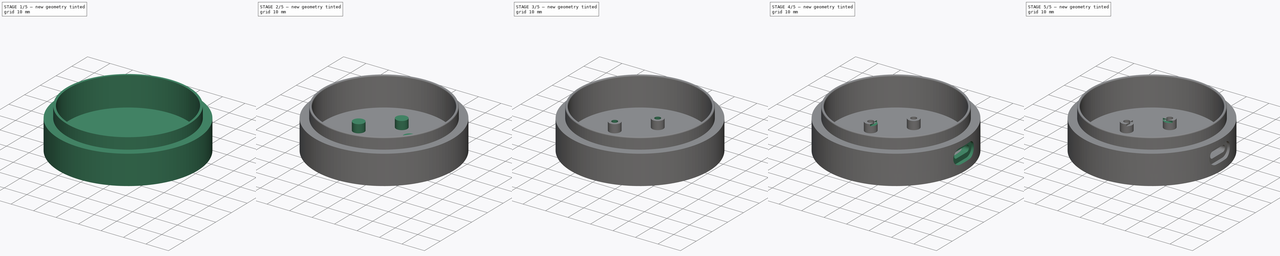
[diagram: build sequence overview — one tinted view per stage of 5, left to right]
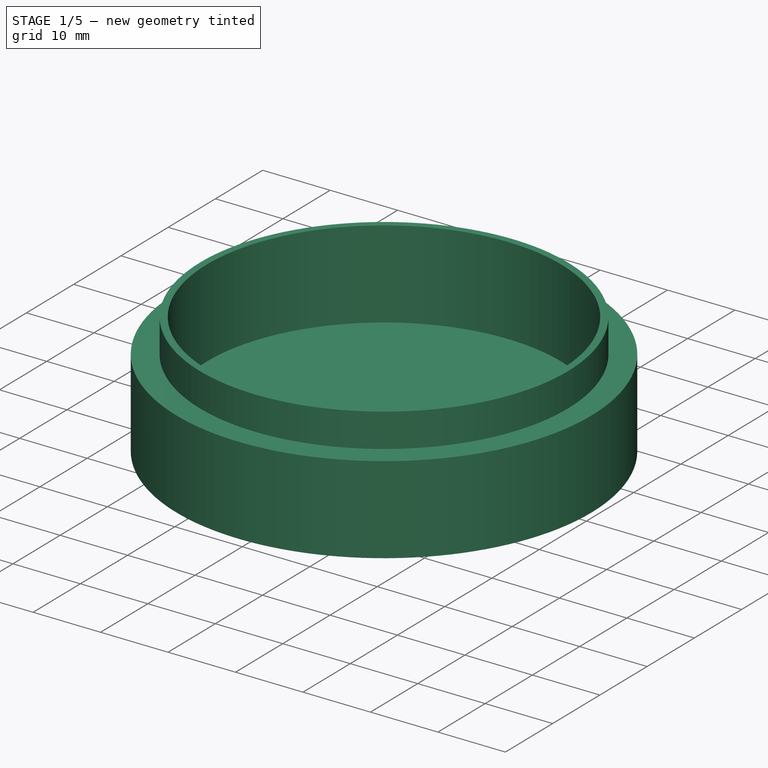
[diagram: stage 1 of 5 — iso view after this stage's code; geometry added in this stage tinted green]
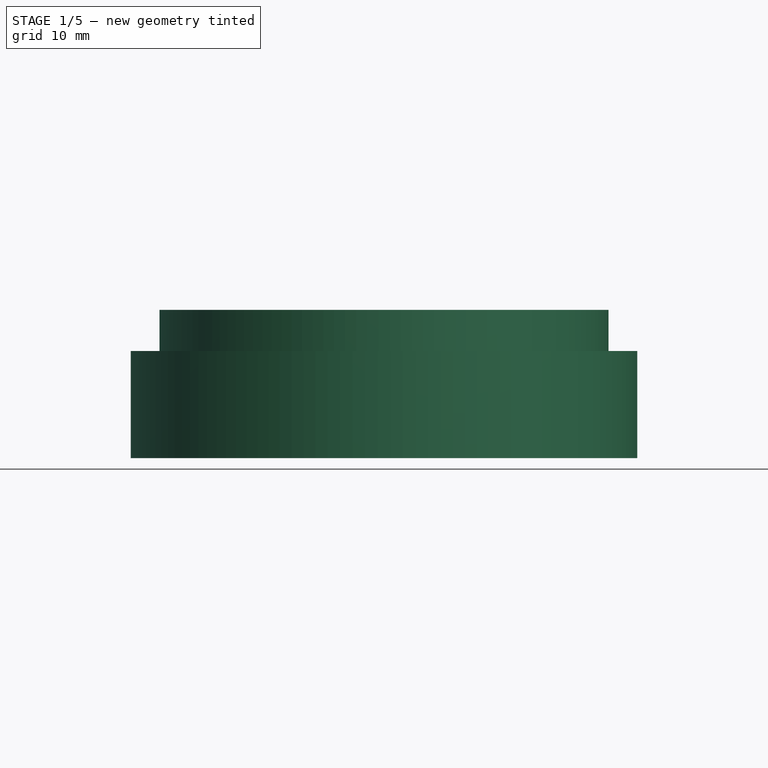
[diagram: stage 1 of 5 — front view after this stage's code; geometry added in this stage tinted green]
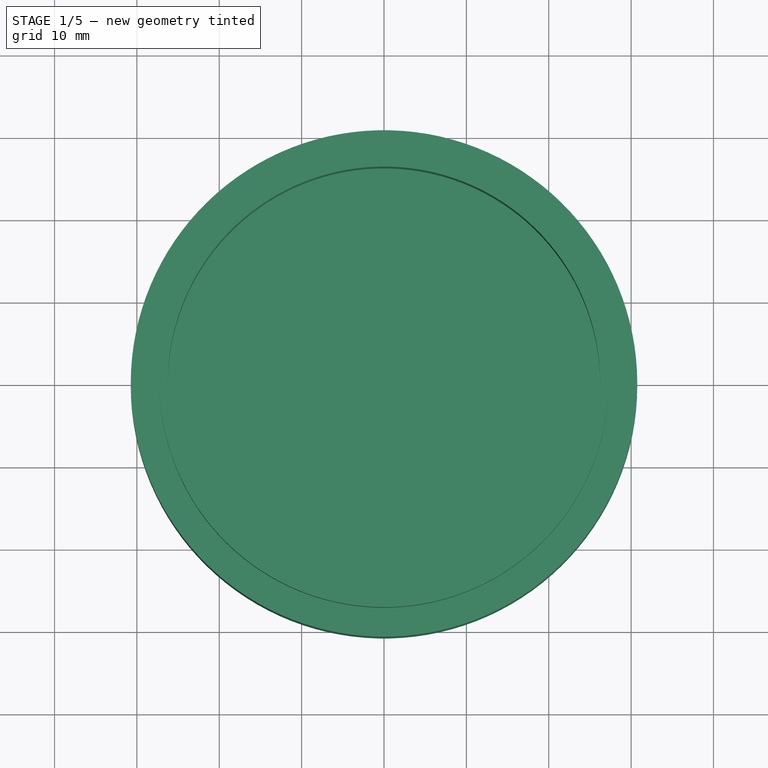
[diagram: stage 1 of 5 — top view after this stage's code; geometry added in this stage tinted green]
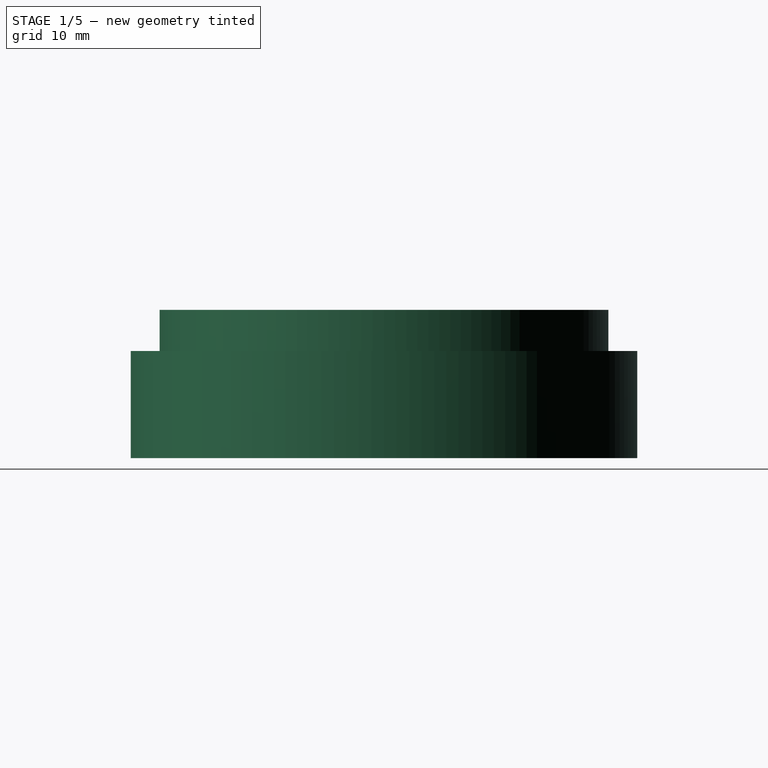
[diagram: stage 1 of 5 — right view after this stage's code; geometry added in this stage tinted green]
FCSTD DOCUMENT  (FreeCAD 0.20R29603 (Git))
Label: shell_bottom
License: All rights reserved
LicenseURL: http://en.wikipedia.org/wiki/All_rights_reserved
objects: Sketcher::SketchObject×11, PartDesign::Pocket×8, PartDesign::PolarPattern×5, PartDesign::Pad×3, PartDesign::Fillet×1, PartDesign::Body×1
note: 41 computed .brp shape members not serialized (recipe doc carries the construction recipe); baked Part::Feature solids carry a one-line shape summary decoded from their .brp

FEATURE [Sketcher::SketchObject] Sketch
  FullyConstrained = true
  MapMode = 5
  Support = -> [XY_Plane]
  sketch-geometry (1):
    g0: Circle CenterX=0 CenterY=0 CenterZ=0 NormalX=0 NormalY=0 NormalZ=1 AngleXU=0 Radius=30.75
  constraints (2):
    c: Coincident(g0,g-1)
    c: Diameter(g0) = 61.5
FEATURE [PartDesign::Pad] Pad
  Direction = (0,0,1)
  Length = 5
  Length2 = 10
  Profile = -> Sketch
  ReferenceAxis = -> Sketch [N_Axis]
  Type = 0
FEATURE [Sketcher::SketchObject] Sketch001
  ExternalGeometry = -> [Pad]
  FullyConstrained = true
  MapMode = 5
  Placement = pos=(0,0,5) rot=(0,0,1;0rad)
  Support = -> [Pad]
  sketch-geometry (4):
    g0: Circle CenterX=0 CenterY=0 CenterZ=0 NormalX=0 NormalY=0 NormalZ=1 AngleXU=0 Radius=26.25
    g1: GeomPoint X=-30.75 Y=0 Z=0
    g2: GeomPoint X=-26.25 Y=0 Z=0
    g3: Circle CenterX=0 CenterY=0 CenterZ=0 NormalX=0 NormalY=0 NormalZ=1 AngleXU=0 Radius=30.75
  constraints (9):
    c: PointOnObject(g1,g-3)
    c: PointOnObject(g2,g0)
    c: PointOnObject(g1,g-1)
    c: PointOnObject(g2,g-1)
    c: Distance(g2,g1) = 4.5
    c: Coincident(g0,g-3)
    c: Coincident(g3,g0)
    c: Equal(g3,g-3)
    c: Diameter(g0) = 52.5
FEATURE [PartDesign::Pad] Pad001  label="圈高"
  BaseFeature = -> Pad
  Direction = (0,0,1)
  Length = 13
  Length2 = 10
  Profile = -> Sketch001
  ReferenceAxis = -> Sketch001 [N_Axis]
  Type = 0
FEATURE [Sketcher::SketchObject] Sketch002
  ExternalGeometry = -> [Pad001]
  FullyConstrained = true
  MapMode = 5
  Placement = pos=(0,0,18) rot=(0,0,1;0rad)
  Support = -> [Pad001]
  sketch-geometry (4):
    g0: Circle CenterX=0 CenterY=0 CenterZ=0 NormalX=0 NormalY=0 NormalZ=1 AngleXU=0 Radius=30.75
    g1: Circle CenterX=0 CenterY=0 CenterZ=0 NormalX=0 NormalY=0 NormalZ=1 AngleXU=0 Radius=27.25
    g2: GeomPoint X=-30.75 Y=0 Z=0
    g3: GeomPoint X=-27.25 Y=0 Z=0
  constraints (8):
    c: Coincident(g0,g-1)
    c: Coincident(g1,g0)
    c: PointOnObject(g2,g0)
    c: PointOnObject(g3,g1)
    c: PointOnObject(g2,g-1)
    c: PointOnObject(g3,g-1)
    c: Distance(g2,g3) = 3.5
    c: Equal(g-3,g0)
FEATURE [PartDesign::Pocket] Pocket
  BaseFeature = -> Pad001
  Direction = (0,0,-1)
  Length = 5
  Length2 = 5
  Profile = -> Sketch002
  ReferenceAxis = -> Sketch002 [N_Axis]
  Type = 0
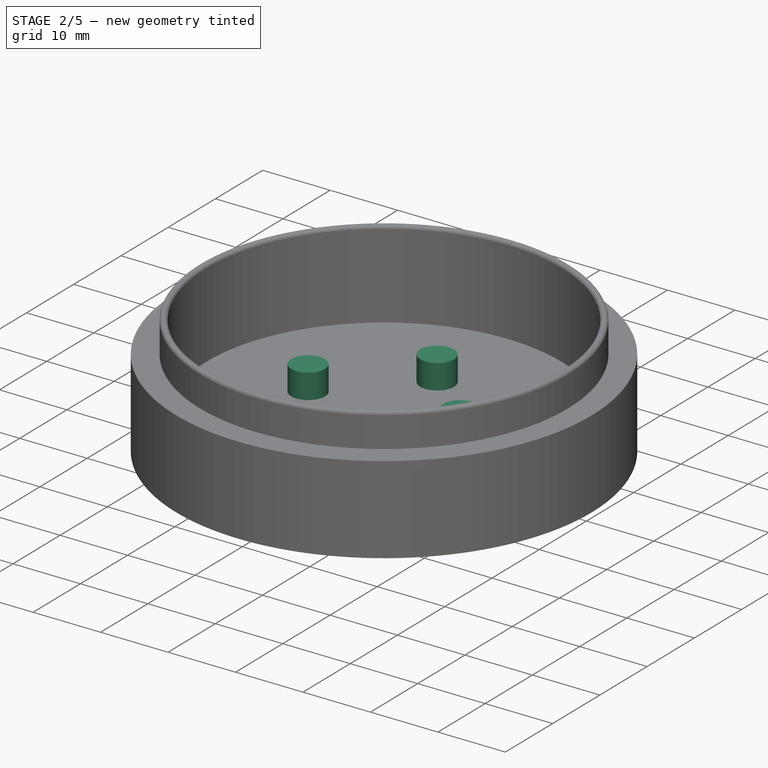
[diagram: stage 2 of 5 — iso view after this stage's code; geometry added in this stage tinted green]
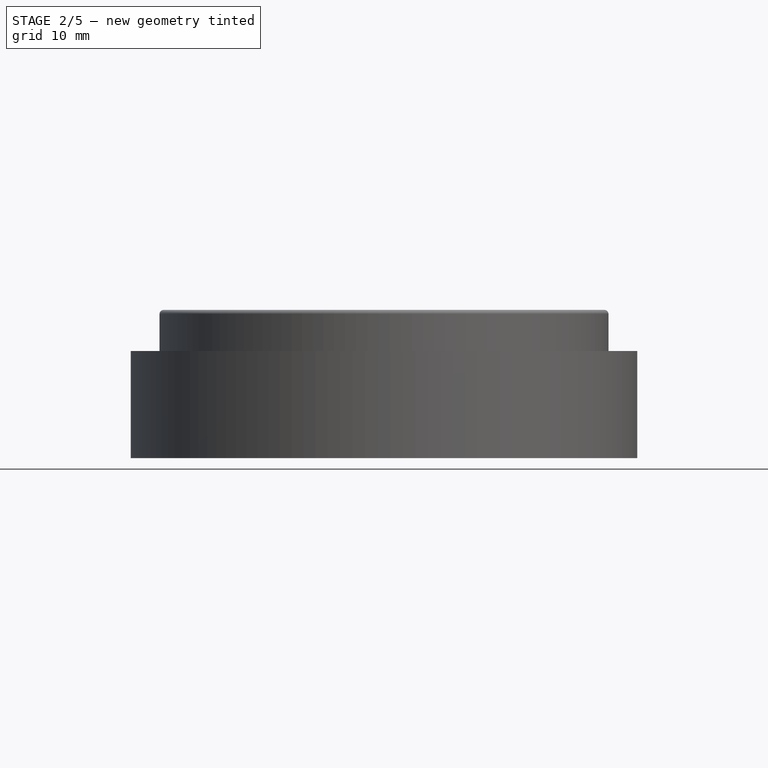
[diagram: stage 2 of 5 — front view after this stage's code; geometry added in this stage tinted green]
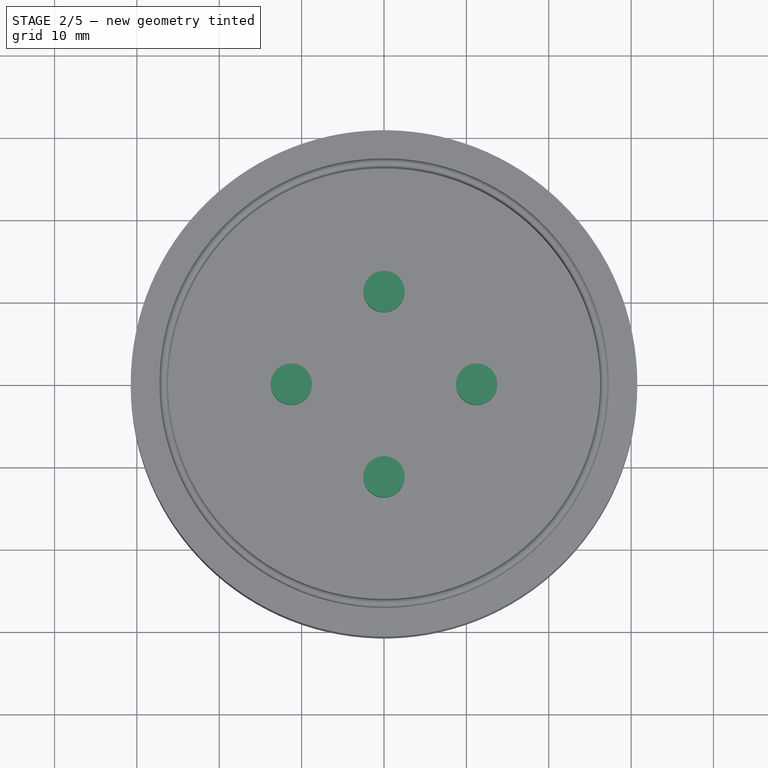
[diagram: stage 2 of 5 — top view after this stage's code; geometry added in this stage tinted green]
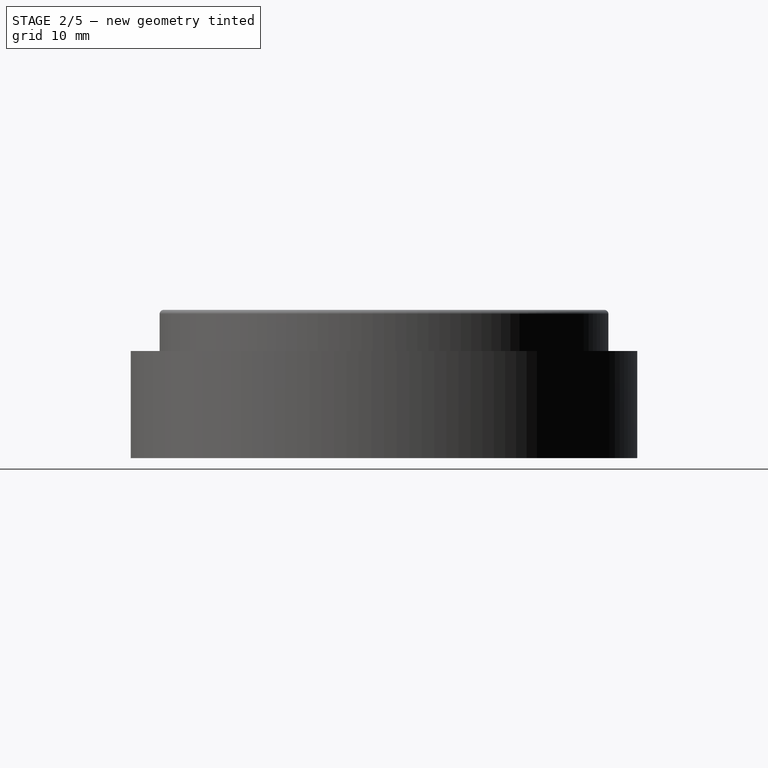
[diagram: stage 2 of 5 — right view after this stage's code; geometry added in this stage tinted green]
FEATURE [PartDesign::Fillet] Fillet
  Base = -> Pocket [Edge8,Edge9]
  BaseFeature = -> Pocket
  Radius = 0.499
  SupportTransform = false
  UseAllEdges = false
FEATURE [Sketcher::SketchObject] Sketch003
  FullyConstrained = true
  MapMode = 5
  Placement = pos=(0,0,5) rot=(0,0,1;0rad)
  Support = -> [Fillet]
  sketch-geometry (1):
    g0: Circle CenterX=0 CenterY=11.25 CenterZ=0 NormalX=0 NormalY=0 NormalZ=1 AngleXU=0 Radius=2.5
  constraints (3):
    c: PointOnObject(g0,g-2)
    c: Distance(g0,g-1) = 11.25
    c: Diameter(g0) = 5
FEATURE [Sketcher::SketchObject] Sketch006
  AttachmentOffset = pos=(0,0,35) rot=(0,0,1;0rad)
  FullyConstrained = true
  MapMode = 5
  Placement = pos=(35,-7.8e-15,7.8e-15) rot=(0.57735,0.57735,0.57735;2.0944rad)
  Support = -> [YZ_Plane]
  sketch-geometry (5):
    g0: LineSegment StartX=-3.125 StartY=7 StartZ=0 EndX=3.125 EndY=7 EndZ=0
    g1: ArcOfCircle CenterX=-3.125 CenterY=7 CenterZ=0 NormalX=0 NormalY=0 NormalZ=1 AngleXU=0 Radius=3.4 StartAngle=1.5708 EndAngle=4.71239
    g2: ArcOfCircle CenterX=3.125 CenterY=7 CenterZ=0 NormalX=0 NormalY=0 NormalZ=1 AngleXU=0 Radius=3.4 StartAngle=4.71239 EndAngle=7.85398
    g3: LineSegment StartX=-3.125 StartY=3.6 StartZ=0 EndX=3.125 EndY=3.6 EndZ=0
    g4: LineSegment StartX=3.125 StartY=10.4 StartZ=0 EndX=-3.125 EndY=10.4 EndZ=0
  constraints (11):
    c: Tangent(g1,g3) = -1.5708
    c: Tangent(g3,g2) = -1.5708
    c: Tangent(g2,g4) = -1.5708
    c: Tangent(g4,g1) = -1.5708
    c: Equal(g1,g2)
    c: Distance(g-1,g0) = 7
    c: Radius(g2) = 3.4
    c: DistanceX(g3,g3) = 6.25
    c: Symmetric(g2,g1,g-2)
    c: Coincident(g0,g2)
    c: Coincident(g1,g0)
FEATURE [PartDesign::Pad] Pad002  label="螺丝柱"
  BaseFeature = -> Fillet
  Direction = (0,0,1)
  Length = 3.68
  Length2 = 10
  Profile = -> Sketch003
  ReferenceAxis = -> Sketch003 [N_Axis]
  Type = 0
FEATURE [PartDesign::PolarPattern] PolarPattern
  Angle = 360
  Axis = -> Sketch003 [N_Axis]
  BaseFeature = -> Pad002
  Occurrences = 4
  Originals = -> [Pad002]
FEATURE [Sketcher::SketchObject] Sketch004
  FullyConstrained = true
  MapMode = 5
  Placement = pos=(0,0,0) rot=(1,0,0;3.14159rad)
  Support = -> [PolarPattern]
  sketch-geometry (1):
    g0: Circle CenterX=0 CenterY=11.25 CenterZ=0 NormalX=0 NormalY=0 NormalZ=1 AngleXU=0 Radius=2
  constraints (3):
    c: PointOnObject(g0,g-2)
    c: Diameter(g0) = 4
    c: Distance(g0,g-1) = 11.25
FEATURE [PartDesign::Pocket] Pocket002
  BaseFeature = -> PolarPattern
  Direction = (0,0,1)
  Length = 2
  Length2 = 5
  Profile = -> Sketch004
  ReferenceAxis = -> Sketch004 [N_Axis]
  Type = 0
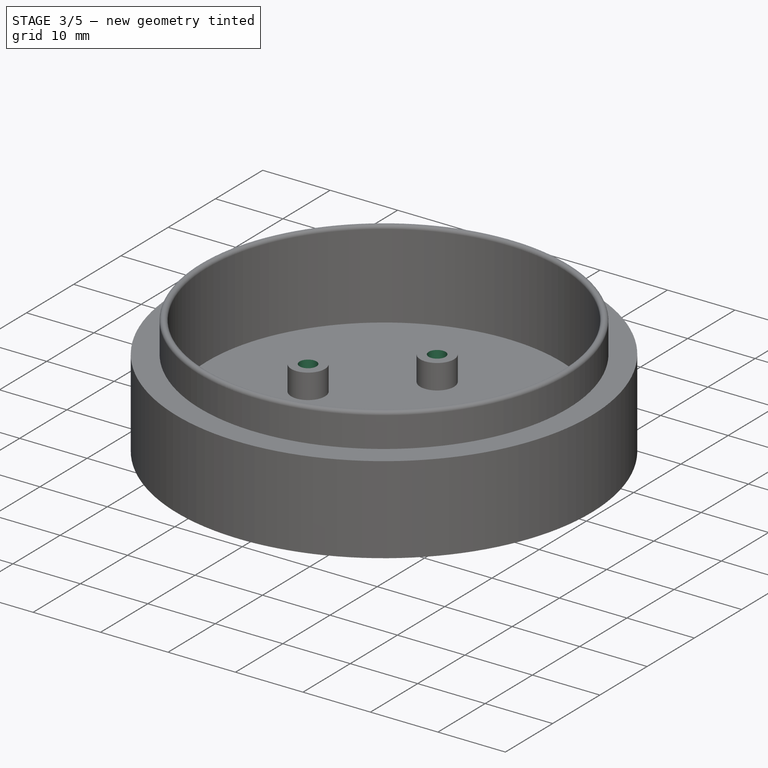
[diagram: stage 3 of 5 — iso view after this stage's code; geometry added in this stage tinted green]
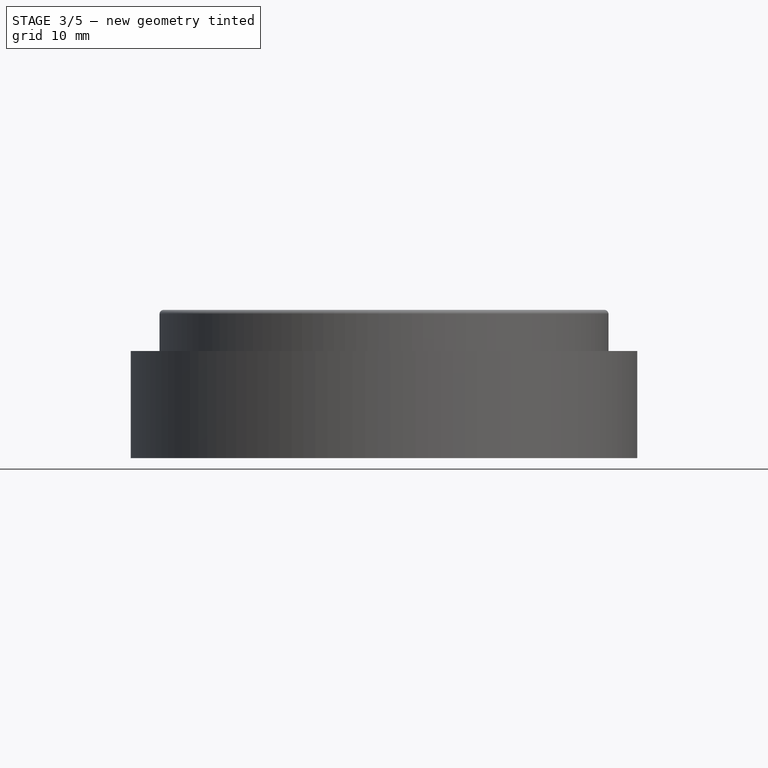
[diagram: stage 3 of 5 — front view after this stage's code; geometry added in this stage tinted green]
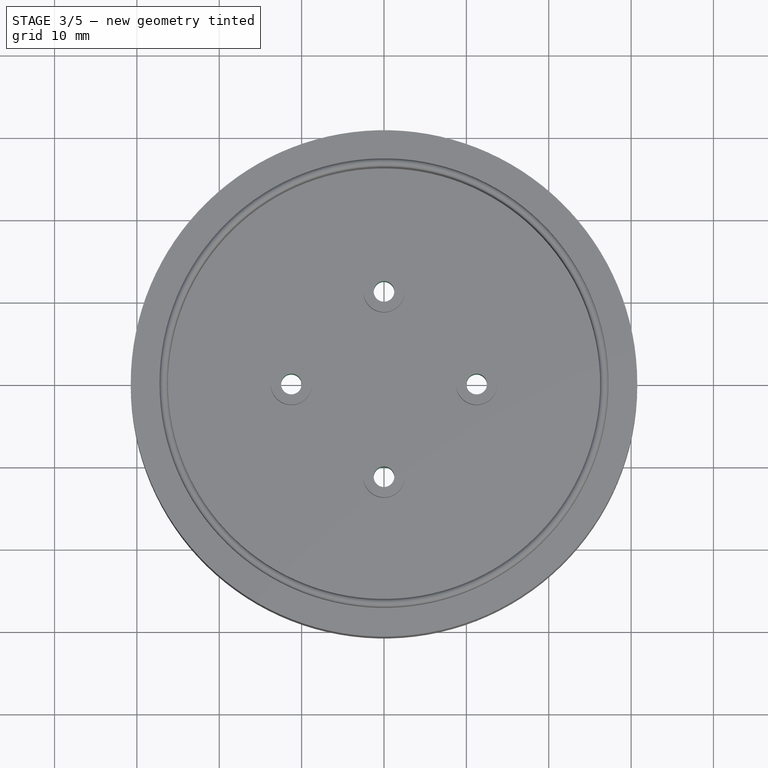
[diagram: stage 3 of 5 — top view after this stage's code; geometry added in this stage tinted green]
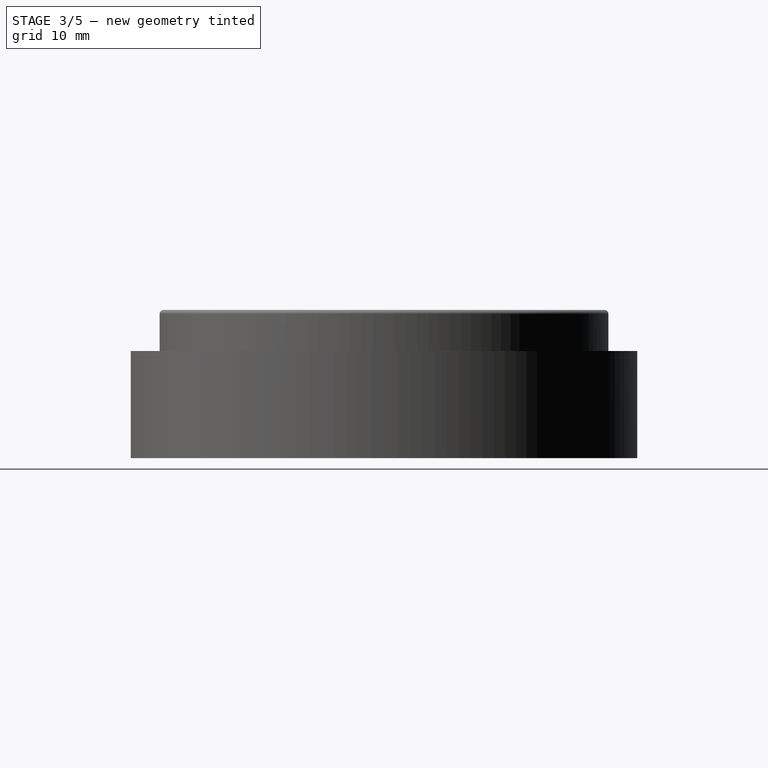
[diagram: stage 3 of 5 — right view after this stage's code; geometry added in this stage tinted green]
FEATURE [PartDesign::PolarPattern] PolarPattern001
  Angle = 360
  Axis = -> Sketch004 [N_Axis]
  BaseFeature = -> Pocket002
  Occurrences = 4
  Originals = -> [Pocket002]
FEATURE [Sketcher::SketchObject] Sketch005
  FullyConstrained = true
  MapMode = 5
  Placement = pos=(0,0,2) rot=(1,0,0;3.14159rad)
  Support = -> [PolarPattern001]
  sketch-geometry (1):
    g0: Circle CenterX=0 CenterY=11.25 CenterZ=0 NormalX=0 NormalY=0 NormalZ=1 AngleXU=0 Radius=1.25
  constraints (3):
    c: PointOnObject(g0,g-2)
    c: Diameter(g0) = 2.5
    c: Distance(g0,g-1) = 11.25
FEATURE [PartDesign::Pocket] Pocket003
  BaseFeature = -> PolarPattern001
  Direction = (0,0,1)
  Length = 0
  Length2 = 5
  Profile = -> Sketch005
  ReferenceAxis = -> Sketch005 [N_Axis]
  Type = 3
  UpToFace = -> PolarPattern001 [Face23]
FEATURE [PartDesign::PolarPattern] PolarPattern002
  Angle = 360
  Axis = -> Sketch005 [N_Axis]
  BaseFeature = -> Pocket003
  Occurrences = 4
  Originals = -> [Pocket003]
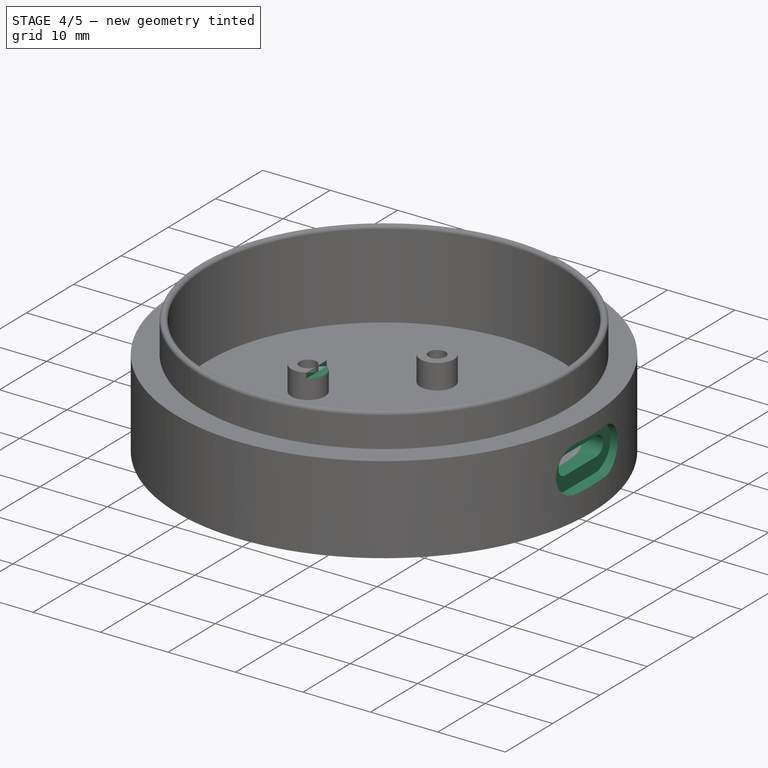
[diagram: stage 4 of 5 — iso view after this stage's code; geometry added in this stage tinted green]
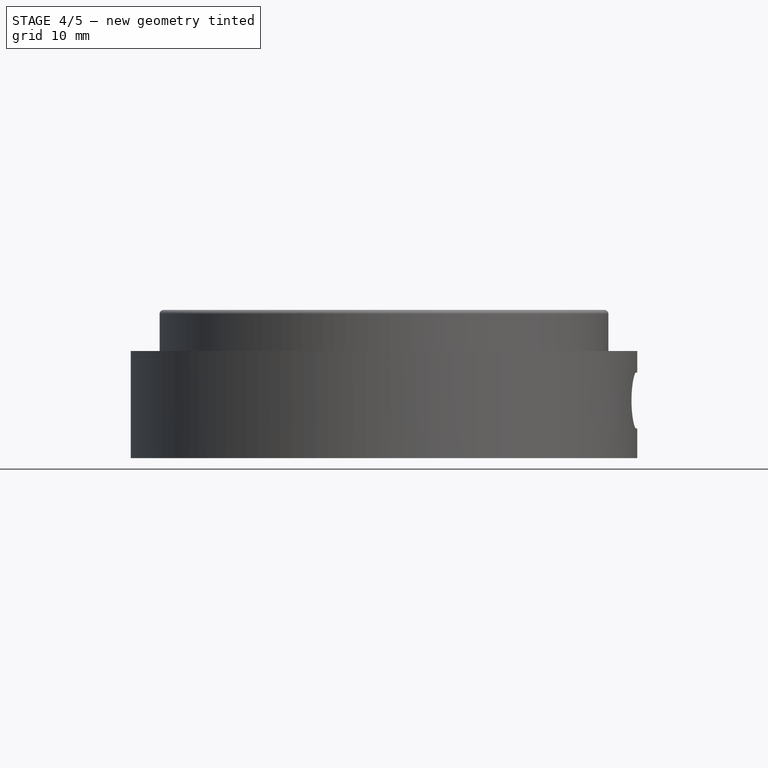
[diagram: stage 4 of 5 — front view after this stage's code; geometry added in this stage tinted green]
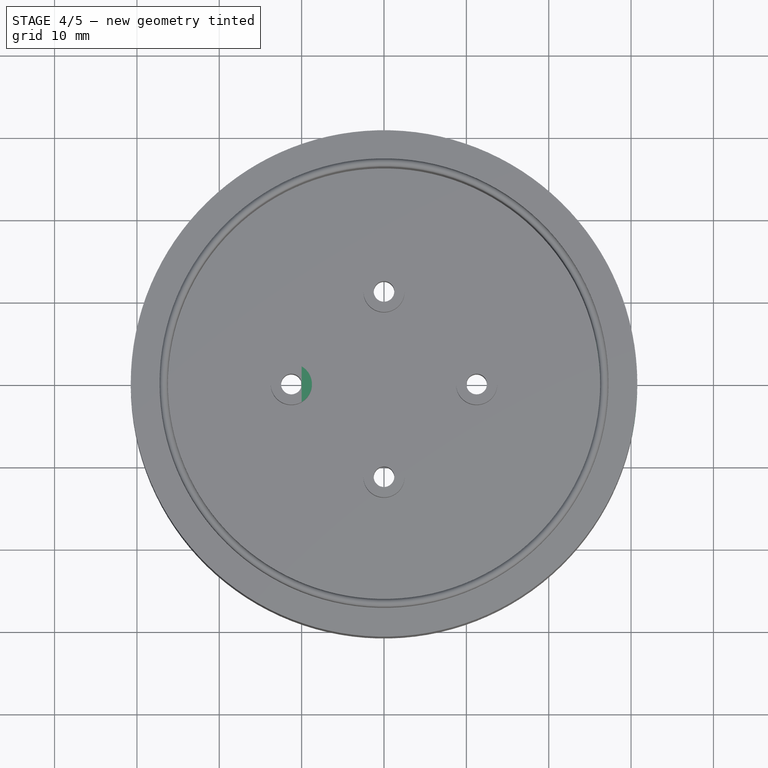
[diagram: stage 4 of 5 — top view after this stage's code; geometry added in this stage tinted green]
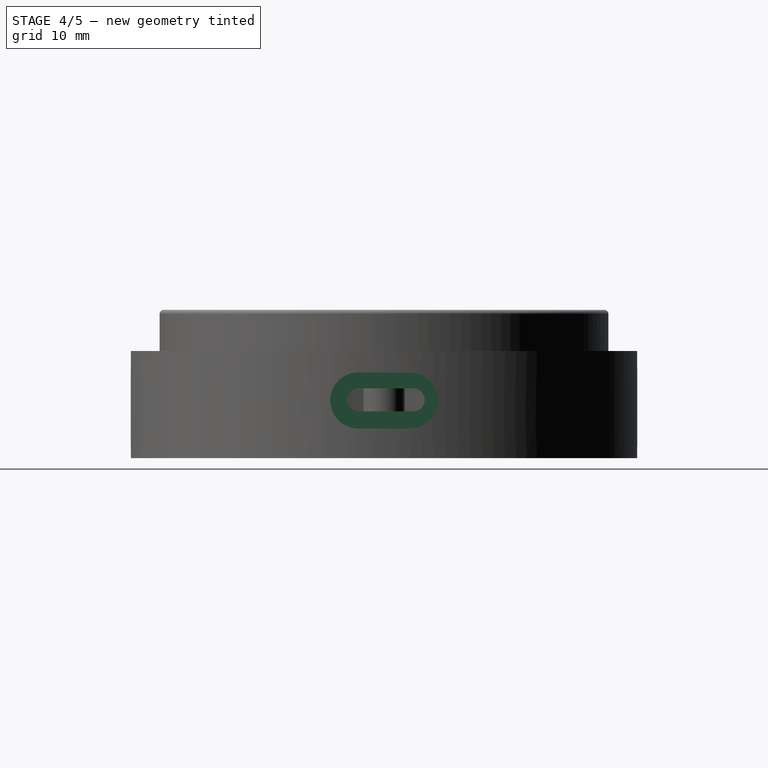
[diagram: stage 4 of 5 — right view after this stage's code; geometry added in this stage tinted green]
FEATURE [PartDesign::Pocket] Pocket004  label="Type-C 外槽"
  BaseFeature = -> PolarPattern002
  Direction = (-1,2e-16,-3e-16)
  Length = 6
  Length2 = 5
  Profile = -> Sketch006
  ReferenceAxis = -> Sketch006 [N_Axis]
  Type = 0
FEATURE [Sketcher::SketchObject] Sketch008
  FullyConstrained = false
  MapMode = 5
  Placement = pos=(29,0,0) rot=(0.57735,0.57735,0.57735;2.0944rad)
  Support = -> [Pocket004]
  sketch-geometry (5):
    g0: ArcOfCircle CenterX=-3.08285 CenterY=7.07544 CenterZ=0 NormalX=0 NormalY=0 NormalZ=1 AngleXU=0 Radius=1.4 StartAngle=1.5708 EndAngle=4.71239
    g1: ArcOfCircle CenterX=3.53684 CenterY=7.07544 CenterZ=0 NormalX=0 NormalY=0 NormalZ=1 AngleXU=0 Radius=1.4 StartAngle=4.71239 EndAngle=7.85398
    g2: LineSegment StartX=-3.08285 StartY=5.67544 StartZ=0 EndX=3.53684 EndY=5.67544 EndZ=0
    g3: LineSegment StartX=3.53684 StartY=8.47544 StartZ=0 EndX=-3.08285 EndY=8.47544 EndZ=0
    g4: LineSegment StartX=-3.08285 StartY=7.07544 StartZ=0 EndX=3.53684 EndY=7.07544 EndZ=0
  constraints (9):
    c: Tangent(g0,g2) = -1.5708
    c: Tangent(g2,g1) = -1.5708
    c: Tangent(g1,g3) = -1.5708
    c: Tangent(g3,g0) = -1.5708
    c: Equal(g0,g1)
    c: Coincident(g4,g0)
    c: Coincident(g4,g1)
    c: Radius(g1) = 1.4
    c: Horizontal(g4)
FEATURE [PartDesign::Pocket] Pocket005  label="Type-C 通孔"
  BaseFeature = -> Pocket004
  Direction = (-1,0,0)
  Length = 0
  Length2 = 5
  Profile = -> Sketch008
  ReferenceAxis = -> Sketch008 [N_Axis]
  Type = 3
  UpToFace = -> Pocket004 [Face11]
FEATURE [Sketcher::SketchObject] Sketch009
  AttachmentOffset = pos=(0,20,25) rot=(0,0,1;0rad)
  ExternalGeometry = -> [Pocket005]
  FullyConstrained = true
  MapMode = 5
  Placement = pos=(25,-1.1e-15,20) rot=(0.57735,0.57735,0.57735;2.0944rad)
  Support = -> [YZ_Plane]
  sketch-geometry (4):
    g0: ArcOfCircle CenterX=3.53684 CenterY=-12.9246 CenterZ=0 NormalX=0 NormalY=0 NormalZ=1 AngleXU=0 Radius=1.9 StartAngle=4.71239 EndAngle=7.85398
    g1: ArcOfCircle CenterX=-3.53684 CenterY=-12.9246 CenterZ=0 NormalX=0 NormalY=0 NormalZ=1 AngleXU=0 Radius=1.9 StartAngle=1.5708 EndAngle=4.71239
    g2: LineSegment StartX=3.53684 StartY=-11.0246 StartZ=0 EndX=-3.53684 EndY=-11.0246 EndZ=0
    g3: LineSegment StartX=-3.53684 StartY=-14.8246 StartZ=0 EndX=3.53684 EndY=-14.8246 EndZ=0
  constraints (8):
    c: Tangent(g0,g2) = -1.5708
    c: Tangent(g2,g1) = -1.5708
    c: Tangent(g1,g3) = -1.5708
    c: Tangent(g3,g0) = -1.5708
    c: Equal(g0,g1)
    c: Coincident(g0,g-3)
    c: Symmetric(g1,g0,g-2)
    c: DistanceY(g-3,g0) = 0.5
FEATURE [PartDesign::Pocket] Pocket006  label="Type-C 内槽"
  BaseFeature = -> Pocket005
  Direction = (-1,2e-16,-3e-16)
  Length = 2
  Length2 = 5
  Profile = -> Sketch009
  ReferenceAxis = -> Sketch009 [N_Axis]
  Reversed = true
  Type = 0
FEATURE [Sketcher::SketchObject] Sketch010
  ExternalGeometry = -> [Pocket006]
  FullyConstrained = true
  MapMode = 5
  Placement = pos=(0,0,8.68) rot=(0,0,1;0rad)
  Support = -> [Pocket006]
  sketch-geometry (4):
    g0: LineSegment StartX=-10 StartY=-2.16506 StartZ=0 EndX=-8.75 EndY=-2.16506 EndZ=0
    g1: LineSegment StartX=-8.75 StartY=-2.16506 StartZ=0 EndX=-8.75 EndY=2.16506 EndZ=0
    g2: LineSegment StartX=-8.75 StartY=2.16506 StartZ=0 EndX=-10 EndY=2.16506 EndZ=0
    g3: LineSegment StartX=-10 StartY=2.16506 StartZ=0 EndX=-10 EndY=-2.16506 EndZ=0
  constraints (11):
    c: Coincident(g0,g1)
    c: Coincident(g1,g2)
    c: Coincident(g2,g3)
    c: Coincident(g3,g0)
    c: Horizontal(g0)
    c: Horizontal(g2)
    c: Vertical(g1)
    c: Symmetric(g2,g0,g-1)
    c: Tangent(g-3,g1)
    c: DistanceX(g0,g0) = 1.25
    c: PointOnObject(g0,g-3)
FEATURE [PartDesign::Pocket] Pocket007
  BaseFeature = -> Pocket006
  Direction = (0,0,-1)
  Length = 0.8
  Length2 = 5
  Profile = -> Sketch010
  ReferenceAxis = -> Sketch010 [N_Axis]
  Type = 0
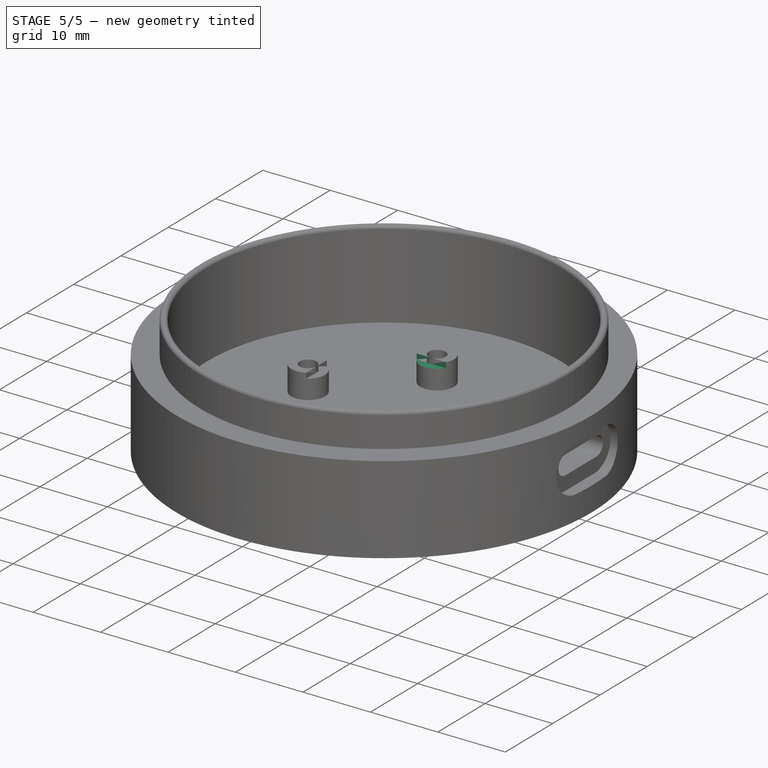
[diagram: stage 5 of 5 — iso view after this stage's code; geometry added in this stage tinted green]
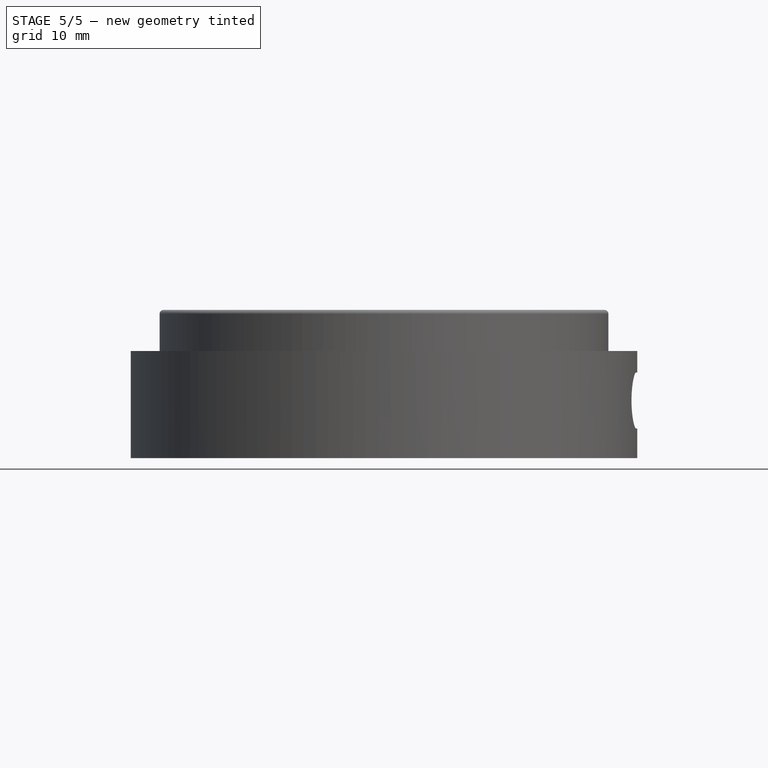
[diagram: stage 5 of 5 — front view after this stage's code; geometry added in this stage tinted green]
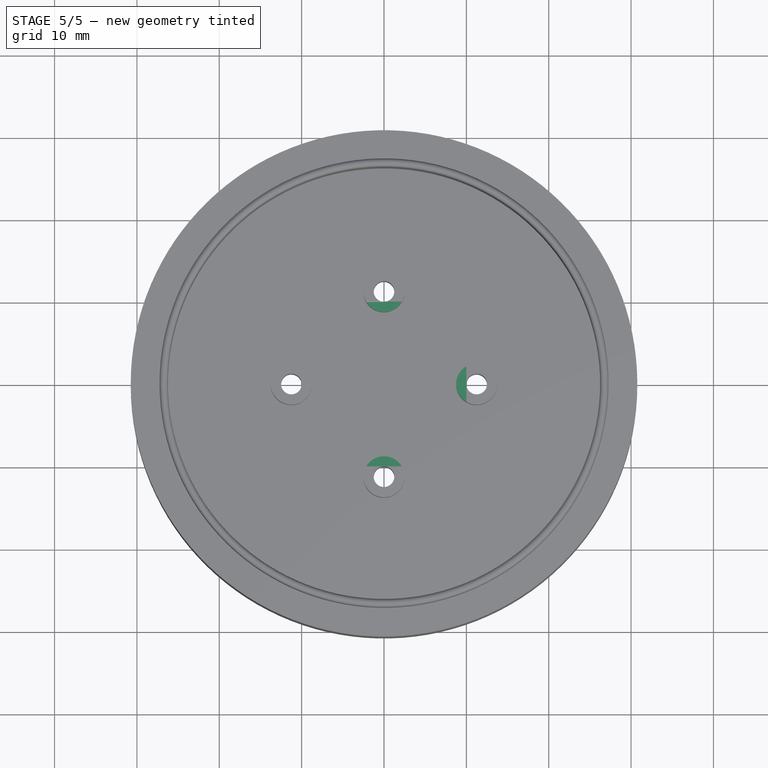
[diagram: stage 5 of 5 — top view after this stage's code; geometry added in this stage tinted green]
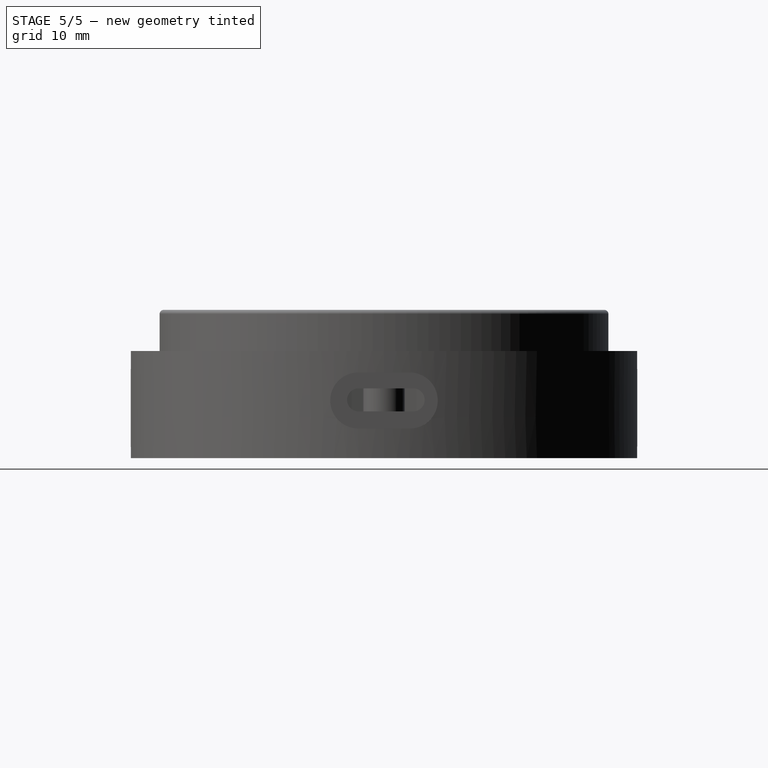
[diagram: stage 5 of 5 — right view after this stage's code; geometry added in this stage tinted green]
FEATURE [PartDesign::PolarPattern] PolarPattern003
  Angle = 360
  Axis = -> Sketch010 [N_Axis]
  BaseFeature = -> Pocket007
  Occurrences = 2
  Originals = -> [Pocket007]
FEATURE [Sketcher::SketchObject] Sketch011
  ExternalGeometry = -> [PolarPattern003]
  FullyConstrained = true
  MapMode = 5
  Placement = pos=(0,0,8.68) rot=(0,0,1;0rad)
  Support = -> [PolarPattern003]
  sketch-geometry (4):
    g0: LineSegment StartX=-2.16506 StartY=10 StartZ=0 EndX=2.16506 EndY=10 EndZ=0
    g1: LineSegment StartX=2.16506 StartY=10 StartZ=0 EndX=2.16506 EndY=8.75 EndZ=0
    g2: LineSegment StartX=2.16506 StartY=8.75 StartZ=0 EndX=-2.16506 EndY=8.75 EndZ=0
    g3: LineSegment StartX=-2.16506 StartY=8.75 StartZ=0 EndX=-2.16506 EndY=10 EndZ=0
  constraints (11):
    c: Coincident(g0,g1)
    c: Coincident(g1,g2)
    c: Coincident(g2,g3)
    c: Coincident(g3,g0)
    c: Horizontal(g0)
    c: Vertical(g1)
    c: Vertical(g3)
    c: Symmetric(g2,g1,g-2)
    c: Tangent(g2,g-3)
    c: PointOnObject(g0,g-3)
    c: DistanceY(g1,g1) = 1.25
FEATURE [PartDesign::Pocket] Pocket008
  BaseFeature = -> PolarPattern003
  Direction = (0,0,-1)
  Length = 0.8
  Length2 = 5
  Profile = -> Sketch011
  ReferenceAxis = -> Sketch011 [N_Axis]
  Type = 0
FEATURE [PartDesign::PolarPattern] PolarPattern004
  Angle = 360
  Axis = -> Sketch011 [N_Axis]
  BaseFeature = -> Pocket008
  Occurrences = 2
  Originals = -> [Pocket008]
FEATURE [PartDesign::Body] Body
  Group = -> [Sketch,Pad,Sketch001,Pad001,Sketch002,Pocket,Fillet,Pad002,PolarPattern,Sketch003,Sketch004,Pocket002,PolarPattern001,Sketch005,Pocket003,PolarPattern002,Sketch006,Pocket004,Sketch008,Pocket005,Sketch009,Pocket006,Sketch010,Pocket007,PolarPattern003,Sketch011,Pocket008,PolarPattern004]
  Origin = -> Origin
  Tip = -> PolarPattern004
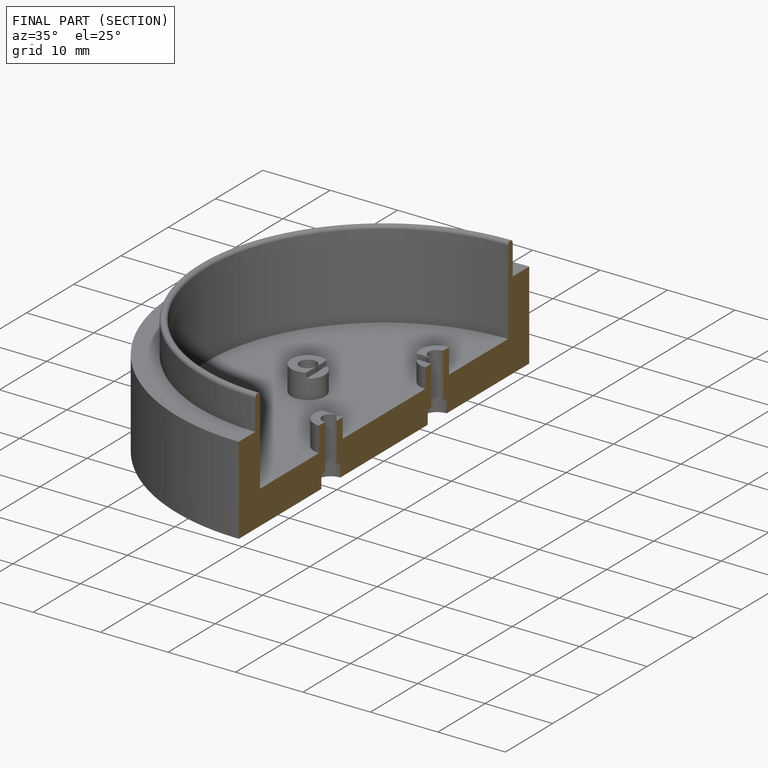
[diagram: finished part — half-section view (interior)]
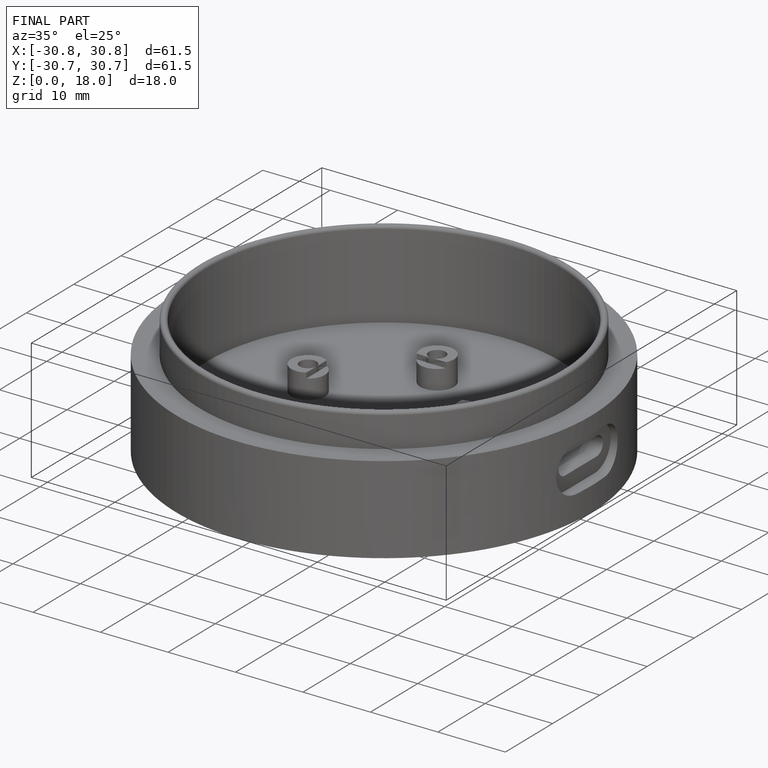
[diagram: finished part — iso view with bounding-box wireframe]
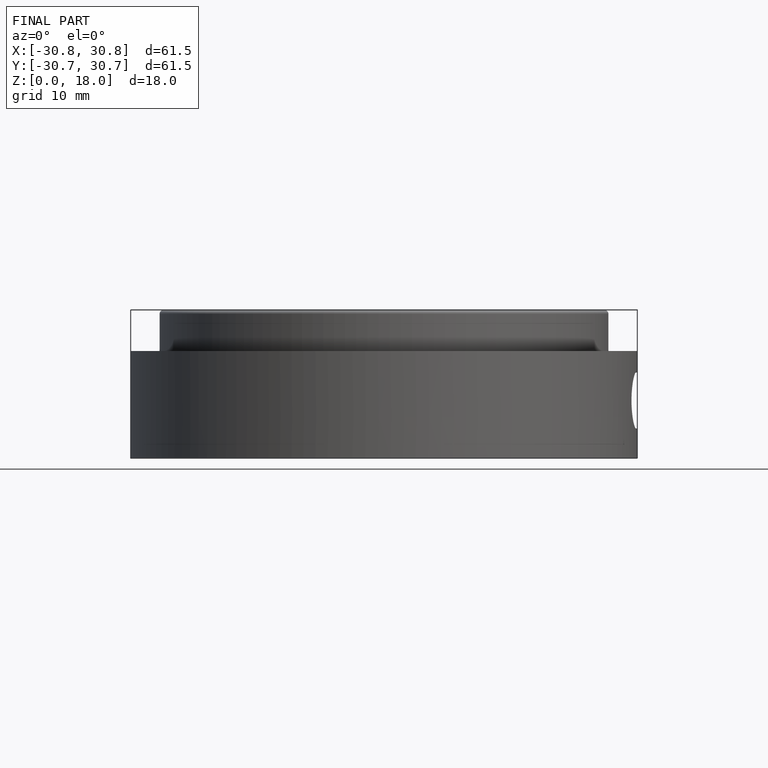
[diagram: finished part — front view with bounding-box wireframe]
